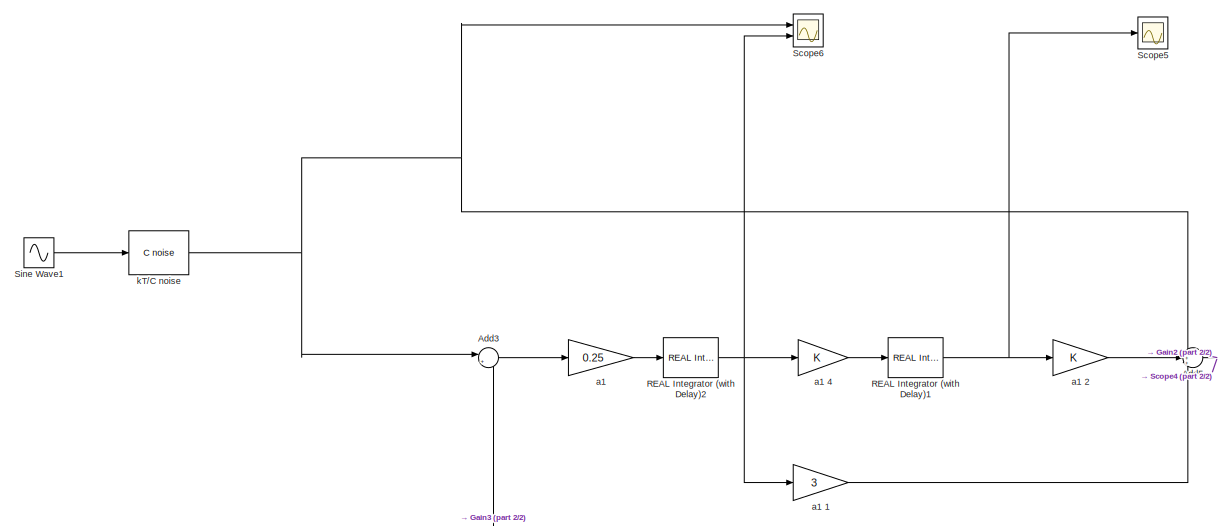
[diagram: root canvas - part 1/2, center side, full height]
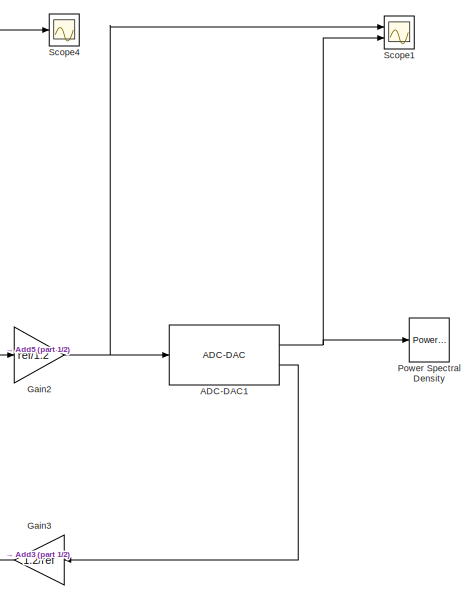
[diagram: root canvas - part 2/2, right side, full height]
MODEL slx_fff5ee619cef
KIND model
CONFIG AbsTol = auto
CONFIG EnableMultiTasking = off
CONFIG FixedStep = auto
CONFIG InitFcn = %fs=256*2e4;\n%osr=512;\nts=1/fs;\n\nNcycle=17;\nMpoints=2^16;\nfin=fs*Ncycle/Mpoints;\n\n\nref=2;\n
CONFIG MaxStep = auto
CONFIG MinStep = auto
CONFIG RelTol = 1e-3
CONFIG SampleTimeConstraint = Unconstrained
CONFIG Solver = VariableStepAuto
CONFIG SolverName = VariableStepAuto
CONFIG StartTime = 0.0
CONFIG StopTime = ts*(Mpoints+10)
BLOCK [Reference] ADC-DAC1  REF=SDtoolbox/ADC-DAC
  Ports = [1, 2]
  SourceBlock = SDtoolbox/ADC-DAC
  SourceProductName = SDtoolbox
BLOCK [Sum] Add3
  IconShape = round
  InputSameDT = off
  Inputs = |+-
  OutDataTypeStr = Inherit: Inherit via internal rule
  Ports = [2, 1]
  SaturateOnIntegerOverflow = off
BLOCK [Sum] Add5
  IconShape = round
  InputSameDT = off
  Inputs = +++
  OutDataTypeStr = Inherit: Inherit via internal rule
  Ports = [3, 1]
  SaturateOnIntegerOverflow = off
BLOCK [Gain] Gain2
  Gain = ref/1.2
  OutDataTypeStr = Inherit: Inherit via internal rule
  ParamDataTypeStr = Inherit: Inherit via internal rule
  SaturateOnIntegerOverflow = off
BLOCK [Gain] Gain3
  Gain = 1.2/ref
  OutDataTypeStr = Inherit: Inherit via internal rule
  ParamDataTypeStr = Inherit: Inherit via internal rule
  SaturateOnIntegerOverflow = off
BLOCK [Reference] Power Spectral Density  REF=SDtoolbox/Power Spectral Density
  Ports = [1]
  SourceBlock = SDtoolbox/Power Spectral Density
  SourceProductName = SDtoolbox
BLOCK [Reference] REAL Integrator (with Delay)1  REF=SDtoolbox/REAL Integrator
(with Delay)
  Ports = [1, 1]
  SourceBlock = SDtoolbox/REAL Integrator\n(with Delay)
  SourceProductName = SDtoolbox
BLOCK [Reference] REAL Integrator (with Delay)2  REF=SDtoolbox/REAL Integrator
(with Delay)
  Ports = [1, 1]
  SourceBlock = SDtoolbox/REAL Integrator\n(with Delay)
  SourceProductName = SDtoolbox
BLOCK [Scope] Scope1
  Floating = off
  NumInputPorts = 2
  Ports = [2]
  ScopeSpecificationString = Simulink.scopes.TimeScopeBlockCfg('CurrentConfiguration', extmgr.ConfigurationSet(extmgr.Configuration('Core','General UI',true),extmgr.Configuration('Core','Source UI',true),extmgr.Configuration('Sources','WiredSimulink',true,'DataLoggingVariableName','ScopeData1'),extmgr.Configuration('Visuals','Time Domain',true,'SerializedDisplays',{struct('MinYLimReal','-0.08856','MaxYLimReal','-0.07745','YLa...<+1553ch>
BLOCK [Scope] Scope4
  Floating = off
  NumInputPorts = 1
  Ports = [1]
  ScopeSpecificationString = Simulink.scopes.TimeScopeBlockCfg('CurrentConfiguration', extmgr.ConfigurationSet(extmgr.Configuration('Core','General UI',true),extmgr.Configuration('Core','Source UI',true),extmgr.Configuration('Sources','WiredSimulink',true,'DataLoggingVariableName','ScopeData2'),extmgr.Configuration('Visuals','Time Domain',true,'SerializedDisplays',{struct('MinYLimReal','-15.56262','MaxYLimReal','15.56259','YL...<+1452ch>
BLOCK [Scope] Scope5
  Floating = off
  NumInputPorts = 1
  Ports = [1]
  ScopeSpecificationString = Simulink.scopes.TimeScopeBlockCfg('CurrentConfiguration', extmgr.ConfigurationSet(extmgr.Configuration('Core','General UI',true),extmgr.Configuration('Core','Source UI',true),extmgr.Configuration('Sources','WiredSimulink',true,'DataLoggingVariableName','ScopeData3'),extmgr.Configuration('Visuals','Time Domain',true,'SerializedDisplays',{struct('MinYLimReal','-1.25','MaxYLimReal','1.25','YLabelReal...<+1500ch>
BLOCK [Scope] Scope6
  Floating = off
  NumInputPorts = 2
  Ports = [2]
  ScopeSpecificationString = Simulink.scopes.TimeScopeBlockCfg('CurrentConfiguration', extmgr.ConfigurationSet(extmgr.Configuration('Core','General UI',true),extmgr.Configuration('Core','Source UI',true),extmgr.Configuration('Sources','WiredSimulink',true),extmgr.Configuration('Visuals','Time Domain',true,'SerializedDisplays',{struct('MinYLimReal','-2.625','MaxYLimReal','2.625','YLabelReal','','MinYLimMag','0.00000','MaxYLimM...<+1524ch>
BLOCK [Sin] Sine Wave1
  Amplitude = A
  Frequency = fin*2*pi
  Ports = [0, 1]
  SampleTime = ts
BLOCK [Gain] a1 
  Gain = 0.25
  OutDataTypeStr = Inherit: Inherit via internal rule
  ParamDataTypeStr = Inherit: Inherit via internal rule
  SaturateOnIntegerOverflow = off
BLOCK [Gain] a1 1
  Gain = 3
  OutDataTypeStr = Inherit: Inherit via internal rule
  ParamDataTypeStr = Inherit: Inherit via internal rule
  SaturateOnIntegerOverflow = off
BLOCK [Gain] a1 2
  OutDataTypeStr = Inherit: Inherit via internal rule
  ParamDataTypeStr = Inherit: Inherit via internal rule
  SaturateOnIntegerOverflow = off
BLOCK [Gain] a1 4
  OutDataTypeStr = Inherit: Inherit via internal rule
  ParamDataTypeStr = Inherit: Inherit via internal rule
  SaturateOnIntegerOverflow = off
BLOCK [Reference] kT//C noise  REF=SDtoolbox/kT//C noise
  Ports = [1, 1]
  SourceBlock = SDtoolbox/kT//C noise
  SourceProductName = SDtoolbox
NET ADC-DAC1:1 -> Power Spectral Density:1, Scope1:2
LINE ADC-DAC1:2 -> Gain3:1
LINE Add3:1 -> a1 :1
NET Add5:1 -> Gain2:1, Scope4:1
NET Gain2:1 -> ADC-DAC1:1, Scope1:1
LINE Gain3:1 -> Add3:2
NET REAL Integrator (with Delay)1:1 -> Scope5:1, a1 2:1
NET REAL Integrator (with Delay)2:1 -> Scope6:2, a1 1:1, a1 4:1
LINE Sine Wave1:1 -> kT//C noise:1
LINE a1 1:1 -> Add5:3
LINE a1 2:1 -> Add5:2
LINE a1 4:1 -> REAL Integrator (with Delay)1:1
LINE a1 :1 -> REAL Integrator (with Delay)2:1
NET kT//C noise:1 -> Add3:1, Add5:1, Scope6:1
note: NET lines group one-source signal fan-out (src -> all destinations, sorted); 1:1 wires keep LINE
